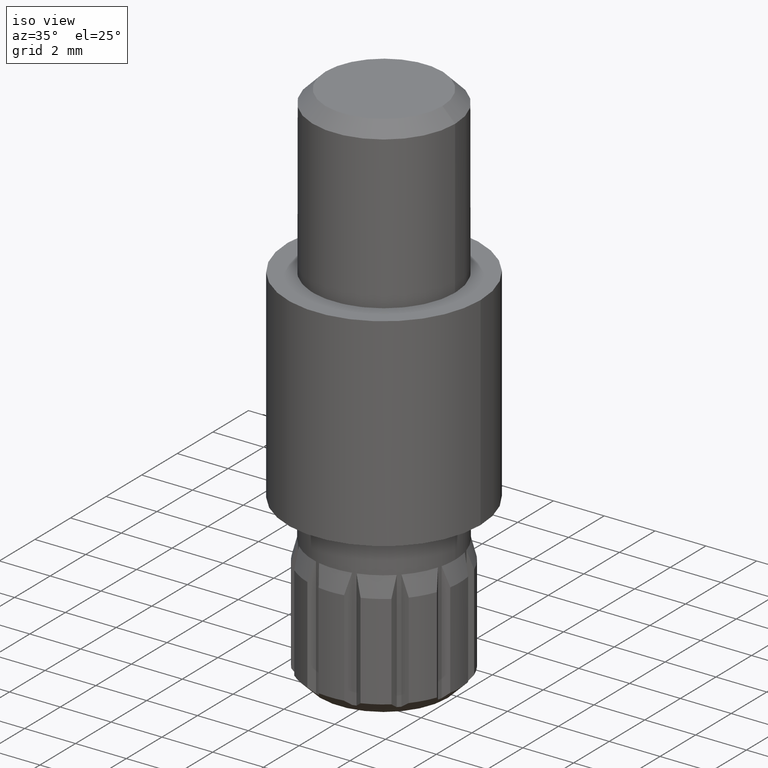
[diagram: clean part render]
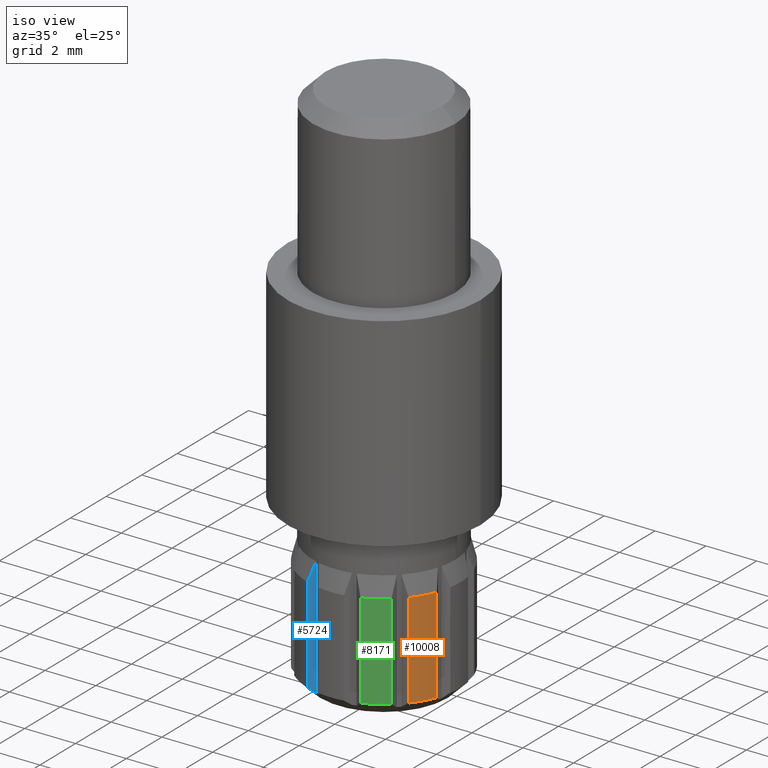
[diagram: same view with three faces highlighted in distinct colors, each labeled with its STEP entity id]
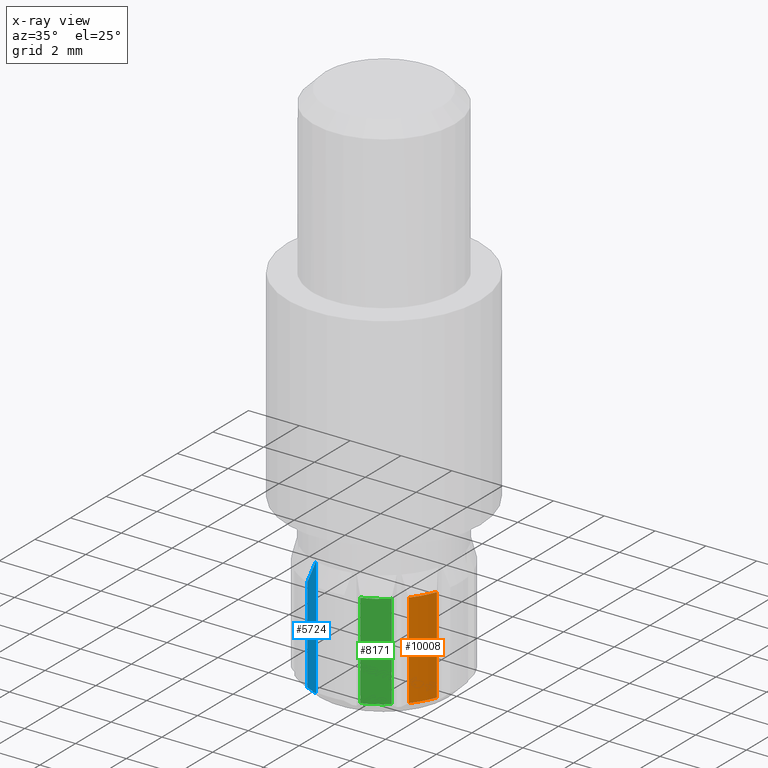
[diagram: x-ray of the same camera — body ghosted, the three highlighted faces saturated]
A machine part, iso view with three faces highlighted in distinct colors.
The next image is the same camera in x-ray (body ghosted, the three faces saturated) — at least one of them is partly hidden behind the body in this view.
Their STEP definitions:

[orange] entity #10008 — the highlighted cylindrical surface (partial cylindrical patch) has radius 3 mm, axis along (0, 0, -1).
#360 = AXIS2_PLACEMENT_3D ( 'NONE', #4120, #5131, #7092 ) ;
#839 = EDGE_CURVE ( 'NONE', #2313, #10653, #986, .T. ) ;
#986 = LINE ( 'NONE', #9495, #6308 ) ;
#996 = EDGE_CURVE ( 'NONE', #11889, #2313, #8322, .T. ) ;
#1705 = CARTESIAN_POINT ( 'NONE',  ( 0.0000000000000000000, 0.0000000000000000000, 4.250000000000000000 ) ) ;
#1886 = VECTOR ( 'NONE', #12070, 1000.000000000000000 ) ;
#2183 = LINE ( 'NONE', #6120, #1886 ) ;
#2198 = CIRCLE ( 'NONE', #9791, 3.000000000000000000 ) ;
#2313 = VERTEX_POINT ( 'NONE', #9617 ) ;
#2391 = VERTEX_POINT ( 'NONE', #6014 ) ;
#2712 = DIRECTION ( 'NONE',  ( -1.000000000000000000, 0.0000000000000000000, 0.0000000000000000000 ) ) ;
#2962 = CYLINDRICAL_SURFACE ( 'NONE', #360, 3.000000000000000400 ) ;
#3337 = ORIENTED_EDGE ( 'NONE', *, *, #8961, .F. ) ;
#3528 = DIRECTION ( 'NONE',  ( 0.0000000000000000000, 0.0000000000000000000, -1.000000000000000000 ) ) ;
#4120 = CARTESIAN_POINT ( 'NONE',  ( 0.0000000000000000000, 0.0000000000000000000, 5.000000000000000000 ) ) ;
#4502 = CARTESIAN_POINT ( 'NONE',  ( 2.311737691489891100, -1.912032647667133900, 0.4999999999999998900 ) ) ;
#5131 = DIRECTION ( 'NONE',  ( 0.0000000000000000000, 0.0000000000000000000, -1.000000000000000000 ) ) ;
#5321 = DIRECTION ( 'NONE',  ( -0.0000000000000000000, -0.0000000000000000000, -1.000000000000000000 ) ) ;
#5912 = AXIS2_PLACEMENT_3D ( 'NONE', #1705, #8674, #2712 ) ;
#6014 = CARTESIAN_POINT ( 'NONE',  ( 2.811737691489895100, -1.046007243882697100, 0.4999999999999998900 ) ) ;
#6120 = CARTESIAN_POINT ( 'NONE',  ( 2.811737691489895500, -1.046007243882697900, 5.000000000000000000 ) ) ;
#6308 = VECTOR ( 'NONE', #3528, 1000.000000000000000 ) ;
#7092 = DIRECTION ( 'NONE',  ( -1.000000000000000000, 0.0000000000000000000, 0.0000000000000000000 ) ) ;
#7556 = CARTESIAN_POINT ( 'NONE',  ( 2.811737691489895500, -1.046007243882698400, 4.250000000000000000 ) ) ;
#8322 = CIRCLE ( 'NONE', #5912, 3.000000000000000900 ) ;
#8674 = DIRECTION ( 'NONE',  ( -0.0000000000000000000, -0.0000000000000000000, -1.000000000000000000 ) ) ;
#8680 = ORIENTED_EDGE ( 'NONE', *, *, #839, .T. ) ;
#8774 = ORIENTED_EDGE ( 'NONE', *, *, #9800, .F. ) ;
#8908 = ORIENTED_EDGE ( 'NONE', *, *, #996, .T. ) ;
#8961 = EDGE_CURVE ( 'NONE', #2391, #10653, #2198, .T. ) ;
#9495 = CARTESIAN_POINT ( 'NONE',  ( 2.311737691489891900, -1.912032647667134500, 5.000000000000000000 ) ) ;
#9617 = CARTESIAN_POINT ( 'NONE',  ( 2.311737691489891900, -1.912032647667134800, 4.250000000000000000 ) ) ;
#9791 = AXIS2_PLACEMENT_3D ( 'NONE', #11288, #5321, #12284 ) ;
#9800 = EDGE_CURVE ( 'NONE', #11889, #2391, #2183, .T. ) ;
#10008 = ADVANCED_FACE ( 'NONE', ( #10919 ), #2962, .T. ) ;
#10653 = VERTEX_POINT ( 'NONE', #4502 ) ;
#10919 = FACE_OUTER_BOUND ( 'NONE', #11215, .T. ) ;
#11215 = EDGE_LOOP ( 'NONE', ( #8908, #8680, #3337, #8774 ) ) ;
#11288 = CARTESIAN_POINT ( 'NONE',  ( 0.0000000000000000000, 0.0000000000000000000, 0.4999999999999998900 ) ) ;
#11889 = VERTEX_POINT ( 'NONE', #7556 ) ;
#12070 = DIRECTION ( 'NONE',  ( 0.0000000000000000000, 0.0000000000000000000, -1.000000000000000000 ) ) ;
#12284 = DIRECTION ( 'NONE',  ( -1.000000000000000000, 0.0000000000000000000, 0.0000000000000000000 ) ) ;

[blue] entity #5724 — the highlighted planar face has unit normal (0.4602, -0.8878, 0).
#246 = CARTESIAN_POINT ( 'NONE',  ( -0.7988378706797688600, -2.683627779027451400, 5.000000000000000900 ) ) ;
#612 = ORIENTED_EDGE ( 'NONE', *, *, #12755, .F. ) ;
#870 = AXIS2_PLACEMENT_3D ( 'NONE', #11514, #5548, #12517 ) ;
#937 = CARTESIAN_POINT ( 'NONE',  ( -0.7988378706797689700, -2.683627779027451900, 0.3000000000000002100 ) ) ;
#1153 = CARTESIAN_POINT ( 'NONE',  ( -0.7988378706797688600, -2.683627779027451400, 5.000000000000000900 ) ) ;
#2222 = ORIENTED_EDGE ( 'NONE', *, *, #10101, .T. ) ;
#2527 = PLANE ( 'NONE',  #870 ) ;
#3336 = CARTESIAN_POINT ( 'NONE',  ( -1.046007243882707700, -2.811737691489891900, 5.000000000000000000 ) ) ;
#3572 = VERTEX_POINT ( 'NONE', #6854 ) ;
#3786 = CARTESIAN_POINT ( 'NONE',  ( -1.046007243882707700, -2.811737691489891500, 0.4999999999999998900 ) ) ;
#4326 = DIRECTION ( 'NONE',  ( 0.0000000000000000000, 0.0000000000000000000, -1.000000000000000000 ) ) ;
#4996 = LINE ( 'NONE', #3336, #12661 ) ;
#5232 = CARTESIAN_POINT ( 'NONE',  ( -0.7988378706797689700, -2.683627779027451900, 5.000000000000000000 ) ) ;
#5236 = CARTESIAN_POINT ( 'NONE',  ( -1.046007243882709000, -2.811737691489891500, 4.250000000000000000 ) ) ;
#5338 = B_SPLINE_CURVE_WITH_KNOTS ( 'NONE', 3,
 ( #7754, #8750, #9742, #3786 ),
 .UNSPECIFIED., .F., .F.,
 ( 4, 4 ),
 ( 2.742078407102277700E-007, 0.0003430640103736633700 ),
 .UNSPECIFIED. ) ;
#5548 = DIRECTION ( 'NONE',  ( 0.4601699955644780700, -0.8878308257670423100, 0.0000000000000000000 ) ) ;
#5724 = ADVANCED_FACE ( 'NONE', ( #5826 ), #2527, .T. ) ;
#5826 = FACE_OUTER_BOUND ( 'NONE', #9166, .T. ) ;
#6234 = CARTESIAN_POINT ( 'NONE',  ( -0.8837206488963861300, -2.727623218858790100, 4.751060318361801600 ) ) ;
#6289 = VERTEX_POINT ( 'NONE', #9721 ) ;
#6707 = VERTEX_POINT ( 'NONE', #1153 ) ;
#6854 = CARTESIAN_POINT ( 'NONE',  ( -1.046007243882709000, -2.811737691489891500, 4.250000000000000000 ) ) ;
#7754 = CARTESIAN_POINT ( 'NONE',  ( -0.7988378706797689700, -2.683627779027451900, 0.3000000000000002100 ) ) ;
#7772 = VECTOR ( 'NONE', #12190, 1000.000000000000000 ) ;
#8750 = CARTESIAN_POINT ( 'NONE',  ( -0.8821669342688681600, -2.726817915829763600, 0.3651688080806905800 ) ) ;
#9166 = EDGE_LOOP ( 'NONE', ( #12408, #2222, #10315, #612 ) ) ;
#9238 = VERTEX_POINT ( 'NONE', #937 ) ;
#9721 = CARTESIAN_POINT ( 'NONE',  ( -1.046007243882707700, -2.811737691489891500, 0.4999999999999998900 ) ) ;
#9742 = CARTESIAN_POINT ( 'NONE',  ( -0.9644935406565242600, -2.769488470846273500, 0.4319807832766577900 ) ) ;
#9952 = B_SPLINE_CURVE_WITH_KNOTS ( 'NONE', 3,
 ( #5236, #10192, #6234, #246 ),
 .UNSPECIFIED., .F., .F.,
 ( 4, 4 ),
 ( 2.125509851734491700E-007, 0.0008002155814297952100 ),
 .UNSPECIFIED. ) ;
#10085 = LINE ( 'NONE', #5232, #7772 ) ;
#10101 = EDGE_CURVE ( 'NONE', #3572, #6289, #4996, .T. ) ;
#10192 = CARTESIAN_POINT ( 'NONE',  ( -0.9658240740986224800, -2.770178097237224500, 4.500908567543602200 ) ) ;
#10315 = ORIENTED_EDGE ( 'NONE', *, *, #11119, .F. ) ;
#10950 = EDGE_CURVE ( 'NONE', #3572, #6707, #9952, .T. ) ;
#11119 = EDGE_CURVE ( 'NONE', #9238, #6289, #5338, .T. ) ;
#11514 = CARTESIAN_POINT ( 'NONE',  ( -0.7988378706797689700, -2.683627779027451900, 5.000000000000000000 ) ) ;
#12190 = DIRECTION ( 'NONE',  ( 0.0000000000000000000, 0.0000000000000000000, -1.000000000000000000 ) ) ;
#12408 = ORIENTED_EDGE ( 'NONE', *, *, #10950, .F. ) ;
#12517 = DIRECTION ( 'NONE',  ( 0.8878308257670423100, 0.4601699955644780700, 0.0000000000000000000 ) ) ;
#12661 = VECTOR ( 'NONE', #4326, 1000.000000000000000 ) ;
#12755 = EDGE_CURVE ( 'NONE', #6707, #9238, #10085, .T. ) ;

[green] entity #8171 — the highlighted cylindrical surface (partial cylindrical patch) has radius 3 mm, axis along (0, 0, -1).
#91 = CARTESIAN_POINT ( 'NONE',  ( 1.912032647667110100, -2.311737691489910600, 0.4999999999999998900 ) ) ;
#1078 = DIRECTION ( 'NONE',  ( 0.0000000000000000000, 0.0000000000000000000, -1.000000000000000000 ) ) ;
#1177 = ORIENTED_EDGE ( 'NONE', *, *, #1667, .F. ) ;
#1667 = EDGE_CURVE ( 'NONE', #11815, #9756, #6920, .T. ) ;
#2538 = EDGE_CURVE ( 'NONE', #11815, #5472, #11885, .T. ) ;
#2740 = CARTESIAN_POINT ( 'NONE',  ( 0.0000000000000000000, 0.0000000000000000000, 5.000000000000000000 ) ) ;
#2893 = FACE_OUTER_BOUND ( 'NONE', #7711, .T. ) ;
#2973 = ORIENTED_EDGE ( 'NONE', *, *, #3014, .T. ) ;
#3014 = EDGE_CURVE ( 'NONE', #5472, #3375, #6117, .T. ) ;
#3136 = EDGE_CURVE ( 'NONE', #9756, #3375, #12385, .T. ) ;
#3375 = VERTEX_POINT ( 'NONE', #9944 ) ;
#3783 = VECTOR ( 'NONE', #4238, 1000.000000000000000 ) ;
#4238 = DIRECTION ( 'NONE',  ( 0.0000000000000000000, 0.0000000000000000000, -1.000000000000000000 ) ) ;
#4679 = DIRECTION ( 'NONE',  ( -0.0000000000000000000, -0.0000000000000000000, -1.000000000000000000 ) ) ;
#5240 = CYLINDRICAL_SURFACE ( 'NONE', #5383, 3.000000000000000400 ) ;
#5383 = AXIS2_PLACEMENT_3D ( 'NONE', #2740, #12735, #5764 ) ;
#5472 = VERTEX_POINT ( 'NONE', #7360 ) ;
#5496 = DIRECTION ( 'NONE',  ( -0.0000000000000000000, -0.0000000000000000000, -1.000000000000000000 ) ) ;
#5764 = DIRECTION ( 'NONE',  ( -1.000000000000000000, 0.0000000000000000000, 0.0000000000000000000 ) ) ;
#6117 = LINE ( 'NONE', #10221, #3783 ) ;
#6920 = LINE ( 'NONE', #11911, #11899 ) ;
#7360 = CARTESIAN_POINT ( 'NONE',  ( 1.046007243882668600, -2.811737691489906600, 4.250000000000000000 ) ) ;
#7711 = EDGE_LOOP ( 'NONE', ( #9015, #2973, #10394, #1177 ) ) ;
#8171 = ADVANCED_FACE ( 'NONE', ( #2893 ), #5240, .T. ) ;
#8951 = AXIS2_PLACEMENT_3D ( 'NONE', #10665, #4679, #11657 ) ;
#9015 = ORIENTED_EDGE ( 'NONE', *, *, #2538, .T. ) ;
#9756 = VERTEX_POINT ( 'NONE', #91 ) ;
#9944 = CARTESIAN_POINT ( 'NONE',  ( 1.046007243882668400, -2.811737691489906200, 0.4999999999999998900 ) ) ;
#10038 = AXIS2_PLACEMENT_3D ( 'NONE', #11462, #5496, #12462 ) ;
#10221 = CARTESIAN_POINT ( 'NONE',  ( 1.046007243882668400, -2.811737691489906200, 5.000000000000000000 ) ) ;
#10394 = ORIENTED_EDGE ( 'NONE', *, *, #3136, .F. ) ;
#10665 = CARTESIAN_POINT ( 'NONE',  ( 0.0000000000000000000, 0.0000000000000000000, 4.250000000000000000 ) ) ;
#11333 = CARTESIAN_POINT ( 'NONE',  ( 1.912032647667110100, -2.311737691489911900, 4.250000000000000000 ) ) ;
#11462 = CARTESIAN_POINT ( 'NONE',  ( 0.0000000000000000000, 0.0000000000000000000, 0.4999999999999998900 ) ) ;
#11657 = DIRECTION ( 'NONE',  ( -1.000000000000000000, 0.0000000000000000000, 0.0000000000000000000 ) ) ;
#11815 = VERTEX_POINT ( 'NONE', #11333 ) ;
#11885 = CIRCLE ( 'NONE', #8951, 3.000000000000000900 ) ;
#11899 = VECTOR ( 'NONE', #1078, 1000.000000000000000 ) ;
#11911 = CARTESIAN_POINT ( 'NONE',  ( 1.912032647667110100, -2.311737691489910600, 5.000000000000000000 ) ) ;
#12385 = CIRCLE ( 'NONE', #10038, 3.000000000000000000 ) ;
#12462 = DIRECTION ( 'NONE',  ( -1.000000000000000000, 0.0000000000000000000, 0.0000000000000000000 ) ) ;
#12735 = DIRECTION ( 'NONE',  ( 0.0000000000000000000, 0.0000000000000000000, -1.000000000000000000 ) ) ;